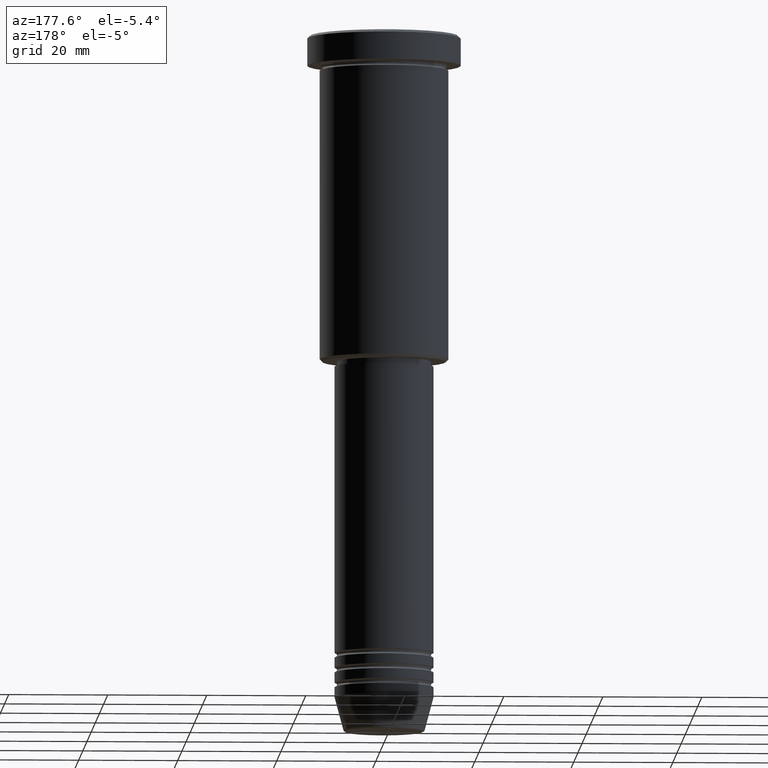
[diagram: clean part render]
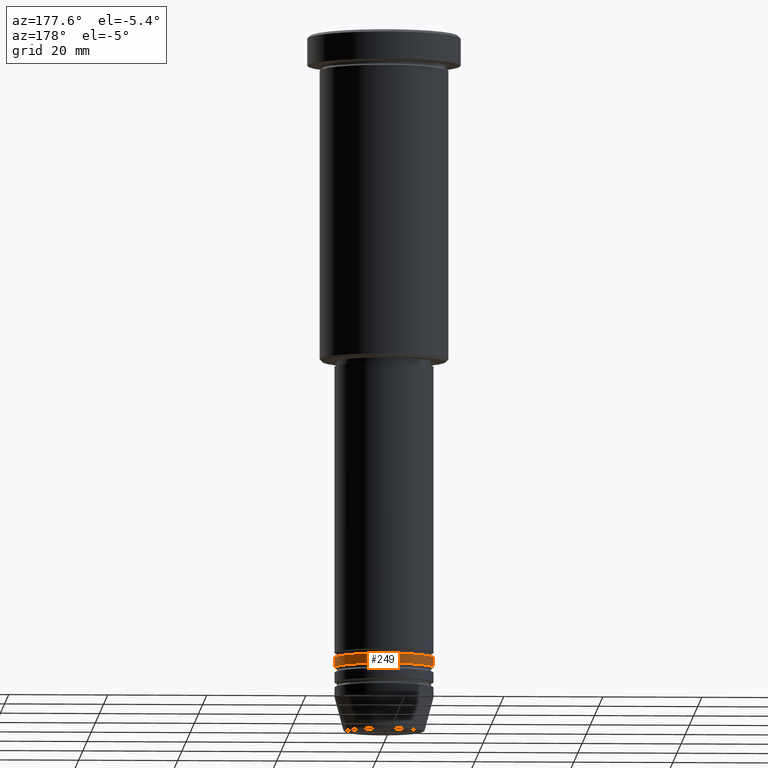
[diagram: same view with one face highlighted and labeled with its STEP entity id]
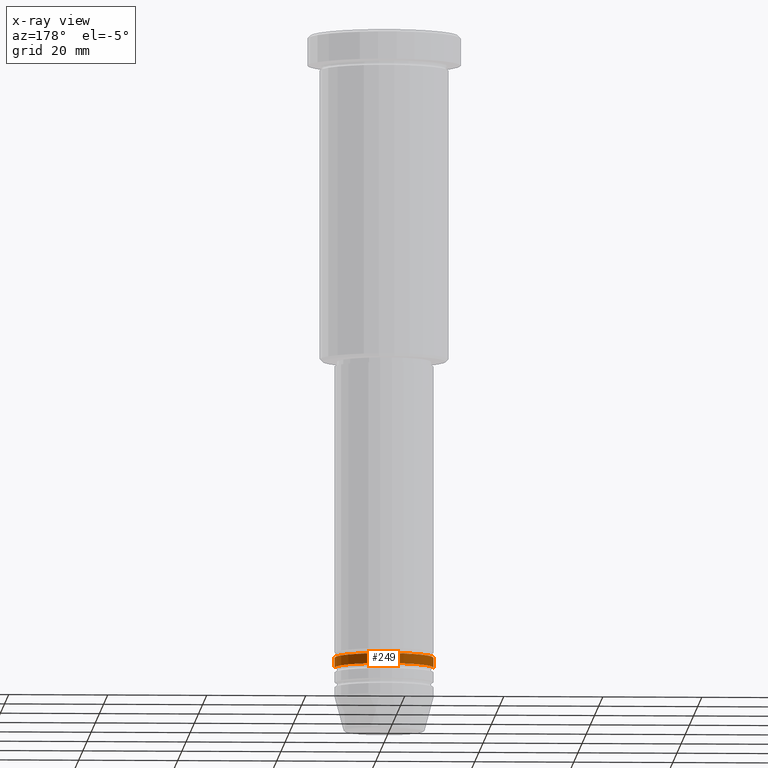
[diagram: x-ray of the same camera — body ghosted, the highlighted face saturated]
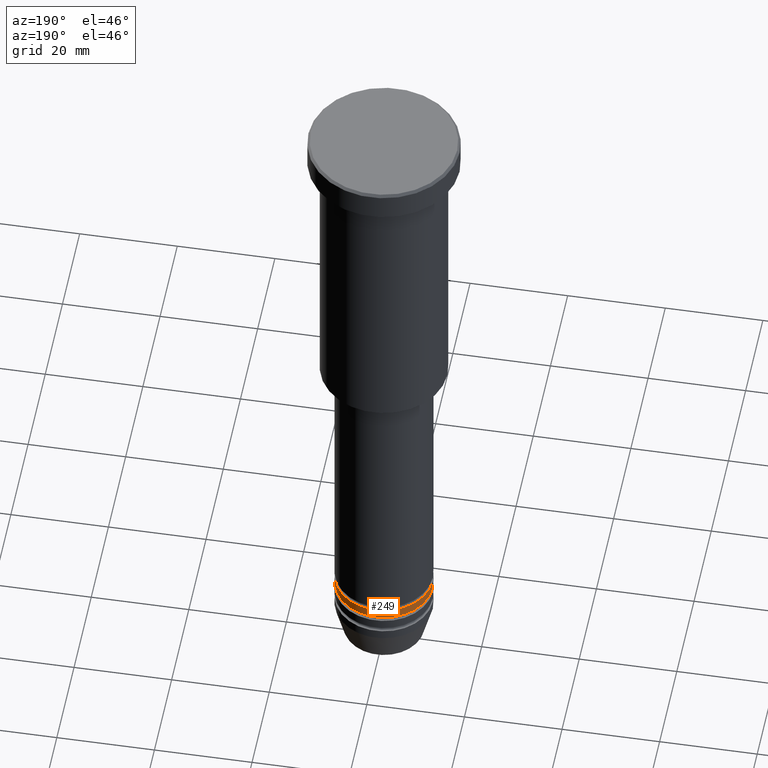
[diagram: same view with one face highlighted and labeled with its STEP entity id]
A machine part, auxiliary view. The second image highlights one B-rep face of the part: STEP entity #249.
The next image is the same camera in x-ray: the body ghosted, the highlighted face saturated — about 0% of this face is hidden behind the body in this view.
A second angle (auxiliary view) of the same face is appended — the face is thin or edge-on in the first view.
In plain terms, the highlighted cylindrical surface (partial cylindrical patch) has radius 10 mm, axis along (-0, -0, 1).
Its self-contained STEP definition (entity closure, byte-faithful):
#2 = VECTOR ( 'NONE', #1160, 1000.000000000000000 ) ;
#101 = EDGE_CURVE ( 'NONE', #359, #1174, #953, .T. ) ;
#112 = DIRECTION ( 'NONE',  ( -0.000000000000000000, -0.000000000000000000, 1.000000000000000000 ) ) ;
#128 = CARTESIAN_POINT ( 'NONE',  ( -10.00000000000000000, 1.224646799147353256E-15, -125.9999999999999716 ) ) ;
#163 = LINE ( 'NONE', #719, #2 ) ;
#184 = ORIENTED_EDGE ( 'NONE', *, *, #101, .F. ) ;
#185 = CARTESIAN_POINT ( 'NONE',  ( 0.000000000000000000, 0.000000000000000000, 0.000000000000000000 ) ) ;
#204 = EDGE_LOOP ( 'NONE', ( #909, #640, #246, #184 ) ) ;
#223 = CYLINDRICAL_SURFACE ( 'NONE', #884, 10.00000000000000000 ) ;
#246 = ORIENTED_EDGE ( 'NONE', *, *, #289, .F. ) ;
#249 = ADVANCED_FACE ( 'NONE', ( #311 ), #223, .T. ) ;
#252 = VECTOR ( 'NONE', #1063, 1000.000000000000000 ) ;
#272 = CIRCLE ( 'NONE', #597, 10.00000000000000000 ) ;
#289 = EDGE_CURVE ( 'NONE', #1174, #1151, #1130, .T. ) ;
#311 = FACE_OUTER_BOUND ( 'NONE', #204, .T. ) ;
#320 = CARTESIAN_POINT ( 'NONE',  ( 10.00000000000000000, 0.000000000000000000, -127.9999999999999716 ) ) ;
#323 = VERTEX_POINT ( 'NONE', #389 ) ;
#334 = CARTESIAN_POINT ( 'NONE',  ( 10.00000000000000000, 0.000000000000000000, 0.000000000000000000 ) ) ;
#359 = VERTEX_POINT ( 'NONE', #320 ) ;
#380 = AXIS2_PLACEMENT_3D ( 'NONE', #825, #476, #735 ) ;
#389 = CARTESIAN_POINT ( 'NONE',  ( -10.00000000000000000, 1.224646799147353256E-15, -127.9999999999999716 ) ) ;
#459 = DIRECTION ( 'NONE',  ( -0.000000000000000000, -0.000000000000000000, 1.000000000000000000 ) ) ;
#476 = DIRECTION ( 'NONE',  ( -0.000000000000000000, -0.000000000000000000, 1.000000000000000000 ) ) ;
#555 = DIRECTION ( 'NONE',  ( 1.000000000000000000, 0.000000000000000000, 0.000000000000000000 ) ) ;
#597 = AXIS2_PLACEMENT_3D ( 'NONE', #832, #459, #642 ) ;
#640 = ORIENTED_EDGE ( 'NONE', *, *, #741, .T. ) ;
#642 = DIRECTION ( 'NONE',  ( 1.000000000000000000, 0.000000000000000000, 0.000000000000000000 ) ) ;
#719 = CARTESIAN_POINT ( 'NONE',  ( -10.00000000000000000, 1.224646799147353256E-15, 0.000000000000000000 ) ) ;
#735 = DIRECTION ( 'NONE',  ( 1.000000000000000000, 0.000000000000000000, 0.000000000000000000 ) ) ;
#741 = EDGE_CURVE ( 'NONE', #323, #1151, #163, .T. ) ;
#825 = CARTESIAN_POINT ( 'NONE',  ( 0.000000000000000000, 0.000000000000000000, -125.9999999999999716 ) ) ;
#832 = CARTESIAN_POINT ( 'NONE',  ( 0.000000000000000000, 0.000000000000000000, -127.9999999999999716 ) ) ;
#856 = CARTESIAN_POINT ( 'NONE',  ( 10.00000000000000000, 0.000000000000000000, -125.9999999999999716 ) ) ;
#884 = AXIS2_PLACEMENT_3D ( 'NONE', #185, #112, #555 ) ;
#909 = ORIENTED_EDGE ( 'NONE', *, *, #1048, .T. ) ;
#953 = LINE ( 'NONE', #334, #252 ) ;
#1048 = EDGE_CURVE ( 'NONE', #359, #323, #272, .T. ) ;
#1063 = DIRECTION ( 'NONE',  ( -0.000000000000000000, -0.000000000000000000, 1.000000000000000000 ) ) ;
#1130 = CIRCLE ( 'NONE', #380, 10.00000000000000000 ) ;
#1151 = VERTEX_POINT ( 'NONE', #128 ) ;
#1160 = DIRECTION ( 'NONE',  ( -0.000000000000000000, -0.000000000000000000, 1.000000000000000000 ) ) ;
#1174 = VERTEX_POINT ( 'NONE', #856 ) ;